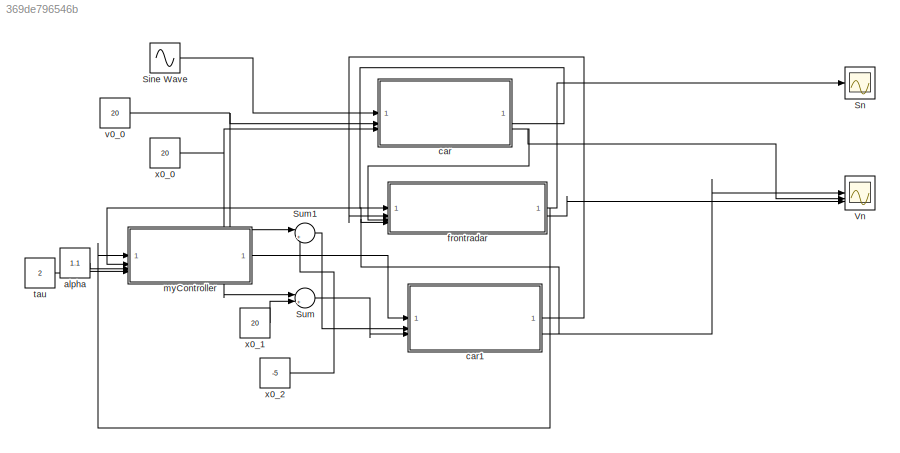
MODEL slx_369de796546b
KIND model
CONFIG AbsTol = auto
CONFIG EnableMultiTasking = off
CONFIG FixedStep = auto
CONFIG MaxStep = auto
CONFIG MinStep = auto
CONFIG RelTol = 1e-3
CONFIG SampleTimeConstraint = Unconstrained
CONFIG SolverName = ode45
CONFIG StartTime = 0.0
CONFIG StopTime = 40.0
BLOCK [Sin] Sine Wave
  Amplitude = 0.5
  SampleTime = 0
BLOCK [Scope] Sn
  ActiveDisplayYMaximum = 1
  ActiveDisplayYMinimum = -1
  Floating = off
  GraphicalSettings = {"Style":{"BackgroundColor":[0.12941176470588237,0.12941176470588237,0.12941176470588237],"AxesColor":[0.07058823529411765,0.07058823529411765,0.07058823529411765],"LabelsColor":[0.8509803921568627,0.8509803921568627,0.8509803921568627],"PreserveColors":false,"Visible":[true],"LineStyle":["-"],"LineWidth":[1.5],"BarWidth":[0.9],"LineColor":["auto"],"LineFaceAlpha":[1],"LineEdgeAlpha":[1],"Marker":...<+2040ch>
  MultipleDisplayCache = [{"MaxYLimMag":1,"MaxYLimReal":1,"MinYLimMag":0,"MinYLimReal":-1,"PlotAsMagnitudePhase":false,"ShowGrid":true,"ShowLegend":false,"Title":"%<SignalLabel>","YLabel":""}]
  NumInputPorts = 1
  ScopeFrameLocation = window
  WasSavedAsWebScope = on
  WindowPosition = [82.000000,233.000000,560.000000,420.000000,]
BLOCK [Sum] Sum
  Inputs = |++
BLOCK [Sum] Sum1
  Inputs = |++
BLOCK [Scope] Vn
  ActiveDisplayYMaximum = 28.455868771088543
  ActiveDisplayYMinimum = -16.718110070913774
  DataLoggingVariableName = ScopeData1
  Floating = off
  GraphicalSettings = {"AxesScalingProperties":{"AlignXAxis":"Center","AlignYAxis":"Center","AutoScaleXAxisLimits":false,"AxesScaling":"Manual","AxesScalingNumUpdates":10,"ExpandOnly":true,"ScaleAxesLimitsAtStop":false,"XAxisDataRange":100,"YAxisDataRange":80},"DisplayProperties":{"ColorOrder":["auto","auto","auto","auto","auto","auto","auto","auto","auto","auto","auto","auto","auto","auto","auto","auto","auto","auto",...<+2250ch>
  MultipleDisplayCache = [{"MaxYLimMag":27.260244016990129,"MaxYLimReal":28.455868771088543,"MinYLimMag":0,"MinYLimReal":-16.718110070913774,"PlotAsMagnitudePhase":false,"ShowGrid":true,"ShowLegend":true,"Title":"%<SignalLabel>","YLabel":""}]
  NumInputPorts = 3
  ScopeFrameLocation = window
  ShowLegend = on
  WasSavedAsWebScope = on
  WindowPosition = [524.000000,114.000000,1390.000000,801.000000,]
BLOCK [Constant] alpha
  Value = 1.1
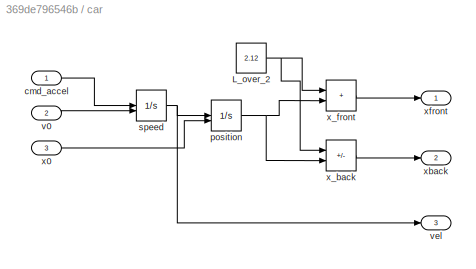
BLOCK [SubSystem] car
BLOCK [Constant] car/L_over_2
  Value = 2.12
BLOCK [Inport] car/cmd_accel
BLOCK [Integrator] car/position
  InitialConditionSource = external
BLOCK [Integrator] car/speed
  InitialConditionSource = external
BLOCK [Inport] car/v0
  Port = 2
BLOCK [Outport] car/vel
  Port = 3
BLOCK [Inport] car/x0
  Port = 3
BLOCK [Sum] car/x_back
  IconShape = rectangular
  Inputs = -+
BLOCK [Sum] car/x_front
  IconShape = rectangular
BLOCK [Outport] car/xback
  Port = 2
BLOCK [Outport] car/xfront
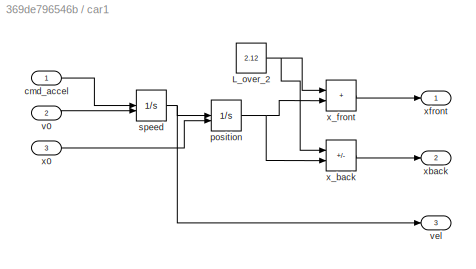
BLOCK [SubSystem] car1
BLOCK [Constant] car1/L_over_2
  Value = 2.12
BLOCK [Inport] car1/cmd_accel
BLOCK [Integrator] car1/position
  InitialConditionSource = external
BLOCK [Integrator] car1/speed
  InitialConditionSource = external
BLOCK [Inport] car1/v0
  Port = 2
BLOCK [Outport] car1/vel
  Port = 3
BLOCK [Inport] car1/x0
  Port = 3
BLOCK [Sum] car1/x_back
  IconShape = rectangular
  Inputs = -+
BLOCK [Sum] car1/x_front
  IconShape = rectangular
BLOCK [Outport] car1/xback
  Port = 2
BLOCK [Outport] car1/xfront
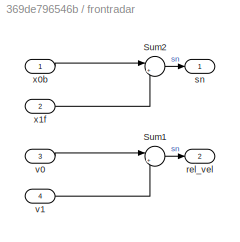
BLOCK [SubSystem] frontradar
BLOCK [Sum] frontradar/Sum1
  Inputs = |+-
BLOCK [Sum] frontradar/Sum2
  Inputs = |+-
BLOCK [Outport] frontradar/rel_vel
  Port = 2
BLOCK [Outport] frontradar/sn
BLOCK [Inport] frontradar/v0
  Port = 3
BLOCK [Inport] frontradar/v1
  Port = 4
BLOCK [Inport] frontradar/x0b
BLOCK [Inport] frontradar/x1f
  Port = 2
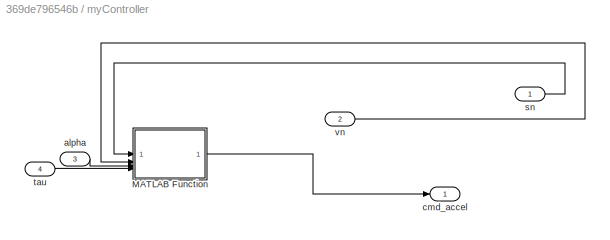
BLOCK [SubSystem] myController
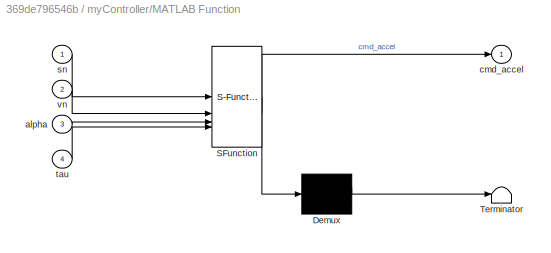
BLOCK [SubSystem] myController/MATLAB Function
  ErrorFcn = Stateflow.Translate.translate
  LibrarySourceBlock = simulink/User-Defined\nFunctions/MATLAB Function
  PermitHierarchicalResolution = ExplicitOnly
  SFBlockType = MATLAB Function
  TreatAsAtomicUnit = on
BLOCK [Demux] myController/MATLAB Function/ Demux 
  Outputs = 1
BLOCK [S-Function] myController/MATLAB Function/ SFunction 
  EnableBusSupport = off
  FunctionName = sf_sfun
  PortCounts = [4 2]
  SFcnIsStateOwnerBlock = off
  SFunctionDeploymentMode = off
  Tag = Stateflow S-Function 2
BLOCK [Terminator] myController/MATLAB Function/ Terminator 
BLOCK [Inport] myController/MATLAB Function/alpha
  Port = 3
BLOCK [Outport] myController/MATLAB Function/cmd_accel
BLOCK [Inport] myController/MATLAB Function/sn
BLOCK [Inport] myController/MATLAB Function/tau
  Port = 4
BLOCK [Inport] myController/MATLAB Function/vn
  Port = 2
BLOCK [Inport] myController/alpha
  Port = 3
BLOCK [Outport] myController/cmd_accel
BLOCK [Inport] myController/sn
BLOCK [Inport] myController/tau
  Port = 4
BLOCK [Inport] myController/vn
  Port = 2
BLOCK [Constant] tau
  Value = 2
BLOCK [Constant] v0_0
  Value = 20
BLOCK [Constant] x0_0
  Value = 20
BLOCK [Constant] x0_1
  Value = 20
BLOCK [Constant] x0_2
  Value = -5
LINE Sine Wave:1 -> car:1
LINE Sum1:1 -> car1:2
LINE Sum:1 -> car1:3
LINE alpha:1 -> myController:3
NET car/L_over_2:1 -> car/x_back:1, car/x_front:1
LINE car/cmd_accel:1 -> car/speed:1
NET car/position:1 -> car/x_back:2, car/x_front:2
NET car/speed:1 -> car/position:1, car/vel:1
LINE car/v0:1 -> car/speed:2
LINE car/x0:1 -> car/position:2
LINE car/x_back:1 -> car/xback:1
LINE car/x_front:1 -> car/xfront:1
NET car1/L_over_2:1 -> car1/x_back:1, car1/x_front:1
LINE car1/cmd_accel:1 -> car1/speed:1
NET car1/position:1 -> car1/x_back:2, car1/x_front:2
NET car1/speed:1 -> car1/position:1, car1/vel:1
LINE car1/v0:1 -> car1/speed:2
LINE car1/x0:1 -> car1/position:2
LINE car1/x_back:1 -> car1/xback:1
LINE car1/x_front:1 -> car1/xfront:1
LINE car1:1 -> frontradar:2
NET car1:3 -> Vn:1, frontradar:4, myController:2
LINE car:2 -> frontradar:1
NET car:3 -> Vn:2, frontradar:3
LINE frontradar/Sum1:1 -> frontradar/rel_vel:1
LINE frontradar/Sum2:1 -> frontradar/sn:1
LINE frontradar/v0:1 -> frontradar/Sum1:1
LINE frontradar/v1:1 -> frontradar/Sum1:2
LINE frontradar/x0b:1 -> frontradar/Sum2:1
LINE frontradar/x1f:1 -> frontradar/Sum2:2
NET frontradar:1 -> Sn:1, myController:1
LINE frontradar:2 -> Vn:3
LINE myController/MATLAB Function:1 -> myController/cmd_accel:1
LINE myController/alpha:1 -> myController/MATLAB Function:3
LINE myController/sn:1 -> myController/MATLAB Function:1
LINE myController/tau:1 -> myController/MATLAB Function:4
LINE myController/vn:1 -> myController/MATLAB Function:2
LINE myController:1 -> car1:1
LINE tau:1 -> myController:4
NET v0_0:1 -> Sum1:1, car:2
NET x0_0:1 -> Sum:1, car:3
LINE x0_1:1 -> Sum:2
LINE x0_2:1 -> Sum1:2
note: NET lines group one-source signal fan-out (src -> all destinations, sorted); 1:1 wires keep LINE
CHART myController/MATLAB Function states=1 transitions=1
  STATE_LABEL 'eML_blk_kernel()'
  STATE_LABEL 'SCRIPT:\nfunction cmd_accel = fcn(sn,vn,alpha,tau)\n\ncmd_accel = alpha * (sn - tau*vn);\n'
CHART  states=0 transitions=0
